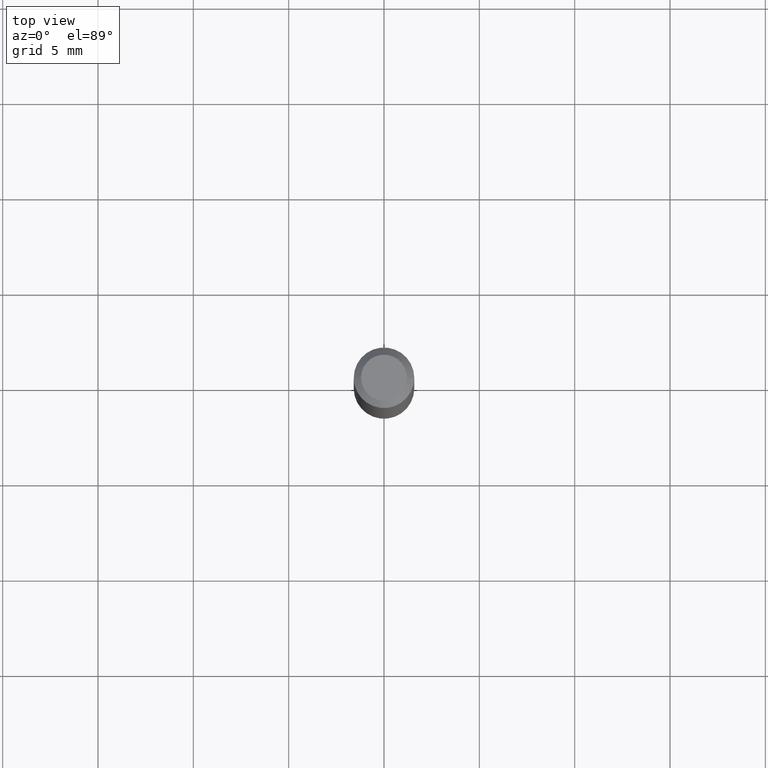
[diagram: clean part render]
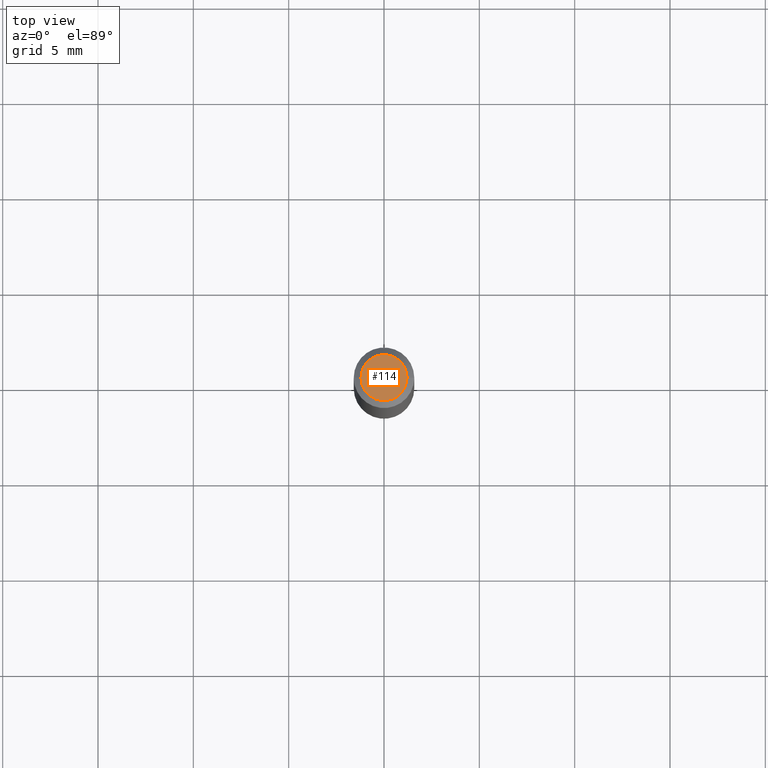
[diagram: same view with one face highlighted and labeled with its STEP entity id]
A machine part, top view. The second image highlights one B-rep face of the part: STEP entity #114.
In plain terms, the highlighted planar face has unit normal (0, -0, -1).
Its self-contained STEP definition (entity closure, byte-faithful):
#11 = CARTESIAN_POINT ( 'NONE',  ( -6.039856226162565090E-45, 8.623313963198306787E-31, 2.469815280770059421E-16 ) ) ;
#31 = AXIS2_PLACEMENT_3D ( 'NONE', #11, #328, #201 ) ;
#32 = FACE_OUTER_BOUND ( 'NONE', #110, .T. ) ;
#63 = DIRECTION ( 'NONE',  ( 1.000000000000000000, -6.982962677686267499E-15, 4.852736867747366768E-29 ) ) ;
#82 = AXIS2_PLACEMENT_3D ( 'NONE', #211, #329, #252 ) ;
#100 = CIRCLE ( 'NONE', #345, 0.04749999999999999362 ) ;
#110 = EDGE_LOOP ( 'NONE', ( #115, #222 ) ) ;
#114 = ADVANCED_FACE ( 'NONE', ( #32 ), #337, .F. ) ;
#115 = ORIENTED_EDGE ( 'NONE', *, *, #253, .T. ) ;
#136 = EDGE_CURVE ( 'NONE', #141, #291, #100, .T. ) ;
#141 = VERTEX_POINT ( 'NONE', #214 ) ;
#201 = DIRECTION ( 'NONE',  ( 1.000000000000000000, -6.982962677686267499E-15, 4.852736867747366768E-29 ) ) ;
#211 = CARTESIAN_POINT ( 'NONE',  ( 3.316907271900976096E-16, 0.04749999999999999362, -4.235459955654642541E-17 ) ) ;
#214 = CARTESIAN_POINT ( 'NONE',  ( 0.04749999999999999362, -4.035134999187574186E-16, 2.469815280770085059E-16 ) ) ;
#222 = ORIENTED_EDGE ( 'NONE', *, *, #136, .T. ) ;
#250 = CARTESIAN_POINT ( 'NONE',  ( -6.039856226162565090E-45, 8.623313963198306787E-31, 2.469815280770059421E-16 ) ) ;
#252 = DIRECTION ( 'NONE',  ( -1.000000000000000000, 6.982962677686265922E-15, -4.876176775795935793E-29 ) ) ;
#253 = EDGE_CURVE ( 'NONE', #291, #141, #268, .T. ) ;
#268 = CIRCLE ( 'NONE', #31, 0.04749999999999999362 ) ;
#291 = VERTEX_POINT ( 'NONE', #331 ) ;
#328 = DIRECTION ( 'NONE',  ( -2.445468806185136597E-29, 3.491481338843145583E-15, 1.000000000000000000 ) ) ;
#329 = DIRECTION ( 'NONE',  ( 2.438088387897960049E-29, -3.491481338843145188E-15, -1.000000000000000000 ) ) ;
#331 = CARTESIAN_POINT ( 'NONE',  ( -0.04749999999999999362, 3.578768372314215436E-16, 2.469815280770035755E-16 ) ) ;
#337 = PLANE ( 'NONE',  #82 ) ;
#345 = AXIS2_PLACEMENT_3D ( 'NONE', #250, #397, #63 ) ;
#397 = DIRECTION ( 'NONE',  ( -2.445468806185136597E-29, 3.491481338843145583E-15, 1.000000000000000000 ) ) ;